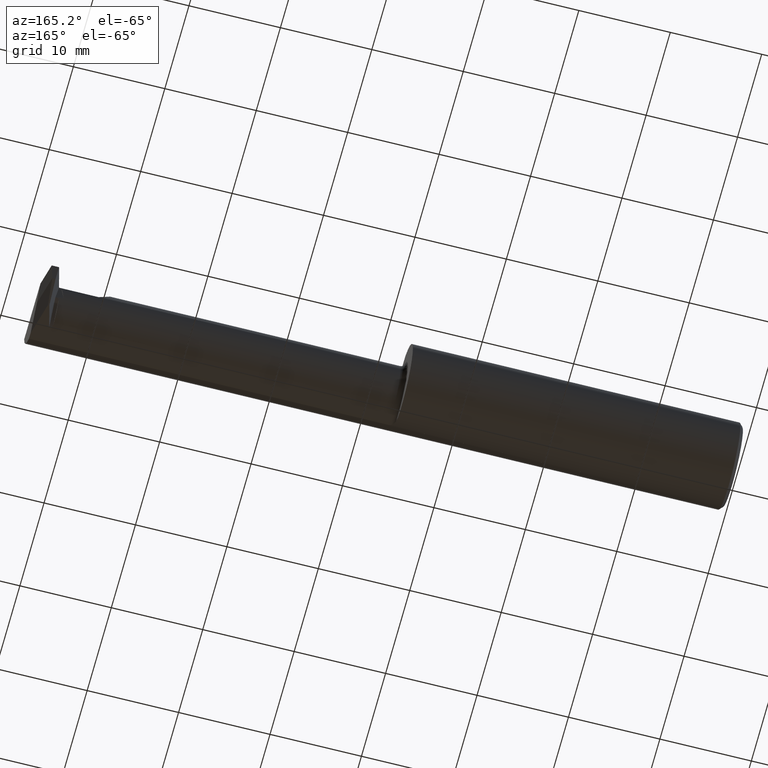
[diagram: clean part render]
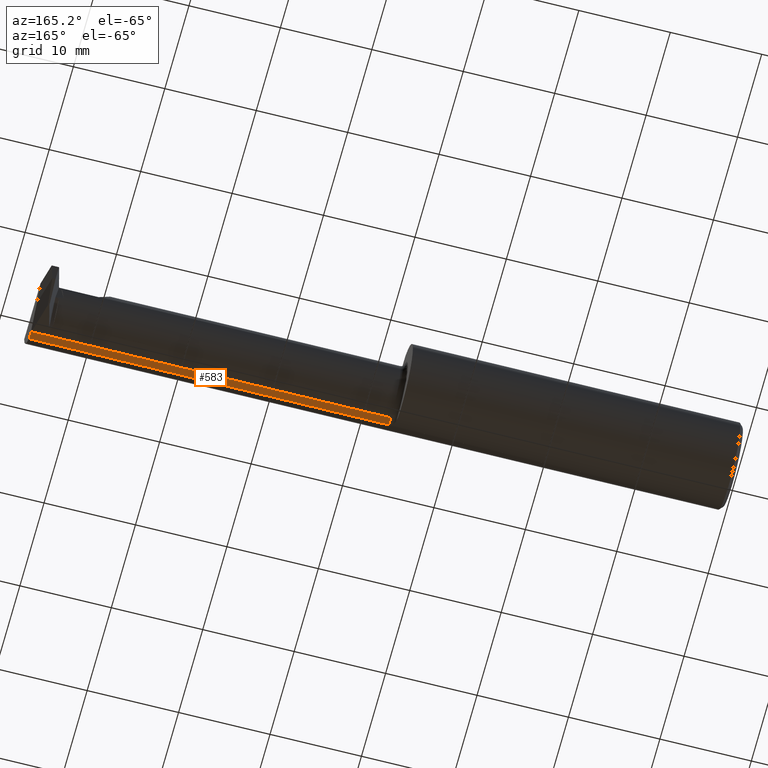
[diagram: same view with one face highlighted and labeled with its STEP entity id]
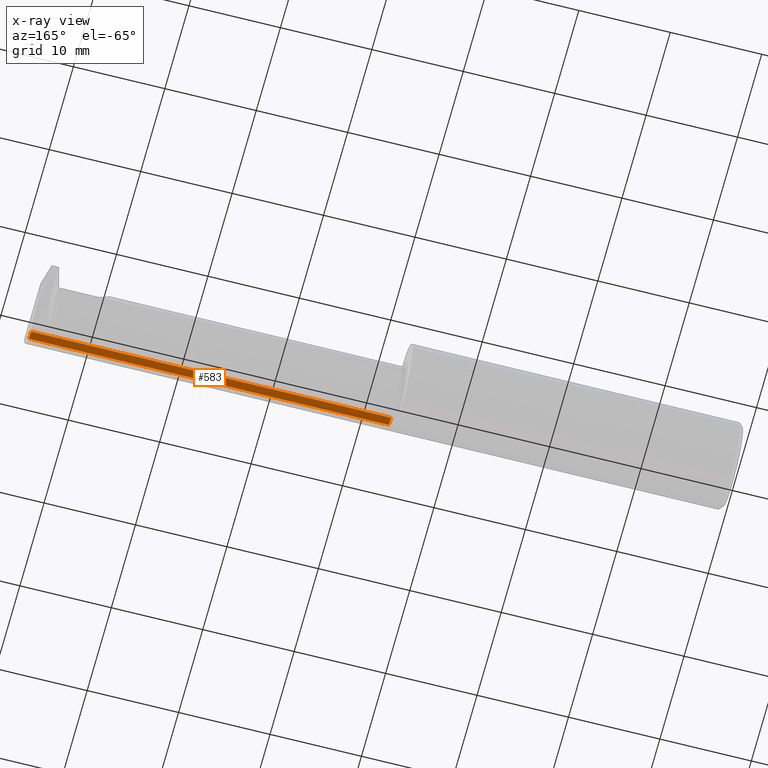
[diagram: x-ray of the same camera — body ghosted, the highlighted face saturated]
A machine part, auxiliary view. The second image highlights one B-rep face of the part: STEP entity #583.
The next image is the same camera in x-ray: the body ghosted, the highlighted face saturated — about 0% of this face is hidden behind the body in this view.
In plain terms, the highlighted cylindrical surface (partial cylindrical patch) has radius 3.937 mm, axis along (-1, -0, -0).
Its self-contained STEP definition (entity closure, byte-faithful):
#11 = CYLINDRICAL_SURFACE ( 'NONE', #20, 0.1549999999999999989 ) ;
#14 = DIRECTION ( 'NONE',  ( 0.000000000000000000, 0.000000000000000000, -1.000000000000000000 ) ) ;
#20 = AXIS2_PLACEMENT_3D ( 'NONE', #940, #626, #250 ) ;
#30 = VERTEX_POINT ( 'NONE', #695 ) ;
#56 = CARTESIAN_POINT ( 'NONE',  ( 2.998238283139452953, -0.07534999999999998643, -0.1549999999999999156 ) ) ;
#75 = CARTESIAN_POINT ( 'NONE',  ( 3.000000000000000444, -0.08199235869079647687, -0.1548576090188105714 ) ) ;
#94 =( BOUNDED_CURVE ( )  B_SPLINE_CURVE ( 3, ( #56, #511, #876, #947 ),
 .UNSPECIFIED., .F., .F. ) 
 B_SPLINE_CURVE_WITH_KNOTS ( ( 4, 4 ),
 ( 0.6981317007977293487, 0.7409987552670644906 ),
 .UNSPECIFIED. ) 
 CURVE ( )  GEOMETRIC_REPRESENTATION_ITEM ( )  RATIONAL_B_SPLINE_CURVE ( ( 1.000000000000000000, 0.9998468738323584848, 0.9998468738323584848, 1.000000000000000000 ) ) 
 REPRESENTATION_ITEM ( '' )  );
#115 = ORIENTED_EDGE ( 'NONE', *, *, #537, .T. ) ;
#123 = AXIS2_PLACEMENT_3D ( 'NONE', #791, #797, #412 ) ;
#181 = VERTEX_POINT ( 'NONE', #75 ) ;
#201 = VECTOR ( 'NONE', #832, 39.37007874015748143 ) ;
#204 = VERTEX_POINT ( 'NONE', #682 ) ;
#250 = DIRECTION ( 'NONE',  ( 0.000000000000000000, 0.000000000000000000, 1.000000000000000000 ) ) ;
#252 = VECTOR ( 'NONE', #445, 39.37007874015748143 ) ;
#271 = VERTEX_POINT ( 'NONE', #328 ) ;
#309 = LINE ( 'NONE', #457, #252 ) ;
#328 = CARTESIAN_POINT ( 'NONE',  ( 2.919999999999999485, -0.07534999999999998643, -0.1549999999999999156 ) ) ;
#345 = CARTESIAN_POINT ( 'NONE',  ( 3.000000000000000444, -0.07534999999999998643, -0.1549999999999999156 ) ) ;
#350 = EDGE_CURVE ( 'NONE', #204, #181, #376, .T. ) ;
#361 = EDGE_CURVE ( 'NONE', #660, #271, #720, .T. ) ;
#376 = CIRCLE ( 'NONE', #123, 0.1549999999999999434 ) ;
#382 = EDGE_CURVE ( 'NONE', #910, #30, #905, .T. ) ;
#396 = CARTESIAN_POINT ( 'NONE',  ( 1.450000000000000178, -0.07535000000000005582, 0.000000000000000000 ) ) ;
#412 = DIRECTION ( 'NONE',  ( 0.000000000000000000, 0.000000000000000000, 1.000000000000000000 ) ) ;
#443 = ORIENTED_EDGE ( 'NONE', *, *, #382, .T. ) ;
#445 = DIRECTION ( 'NONE',  ( -1.000000000000000000, -0.000000000000000000, -0.000000000000000000 ) ) ;
#457 = CARTESIAN_POINT ( 'NONE',  ( 2.172500000000000320, -0.1111655275381552704, -0.1508053314281814217 ) ) ;
#461 = EDGE_LOOP ( 'NONE', ( #550, #649, #650, #967, #115, #443 ) ) ;
#511 = CARTESIAN_POINT ( 'NONE',  ( 2.998811112660292544, -0.07756496740937238177, -0.1550000000000000266 ) ) ;
#527 = LINE ( 'NONE', #599, #201 ) ;
#537 = EDGE_CURVE ( 'NONE', #204, #910, #309, .T. ) ;
#550 = ORIENTED_EDGE ( 'NONE', *, *, #557, .F. ) ;
#557 = EDGE_CURVE ( 'NONE', #271, #30, #527, .T. ) ;
#561 = CARTESIAN_POINT ( 'NONE',  ( 1.450000000000000178, -0.1111655275381552704, -0.1508053314281814217 ) ) ;
#583 = ADVANCED_FACE ( 'NONE', ( #787 ), #11, .T. ) ;
#599 = CARTESIAN_POINT ( 'NONE',  ( 1.425000000000000266, -0.07535000000000004194, -0.1549999999999999989 ) ) ;
#626 = DIRECTION ( 'NONE',  ( -1.000000000000000000, -0.000000000000000000, -0.000000000000000000 ) ) ;
#649 = ORIENTED_EDGE ( 'NONE', *, *, #361, .F. ) ;
#650 = ORIENTED_EDGE ( 'NONE', *, *, #897, .T. ) ;
#660 = VERTEX_POINT ( 'NONE', #778 ) ;
#672 = AXIS2_PLACEMENT_3D ( 'NONE', #396, #696, #14 ) ;
#682 = CARTESIAN_POINT ( 'NONE',  ( 3.000000000000000444, -0.1111655275381552010, -0.1508053314281814494 ) ) ;
#695 = CARTESIAN_POINT ( 'NONE',  ( 1.450000000000000178, -0.07535000000000004194, -0.1549999999999999989 ) ) ;
#696 = DIRECTION ( 'NONE',  ( 1.000000000000000000, 0.000000000000000000, 0.000000000000000000 ) ) ;
#720 = LINE ( 'NONE', #345, #931 ) ;
#778 = CARTESIAN_POINT ( 'NONE',  ( 2.998238283139452953, -0.07534999999999998643, -0.1549999999999999156 ) ) ;
#787 = FACE_OUTER_BOUND ( 'NONE', #461, .T. ) ;
#791 = CARTESIAN_POINT ( 'NONE',  ( 3.000000000000000444, -0.07535000000000005582, 0.000000000000000000 ) ) ;
#797 = DIRECTION ( 'NONE',  ( 1.000000000000000000, -0.000000000000000000, -0.000000000000000000 ) ) ;
#832 = DIRECTION ( 'NONE',  ( -1.000000000000000000, -0.000000000000000000, -0.000000000000000000 ) ) ;
#876 = CARTESIAN_POINT ( 'NONE',  ( 2.999398441549230299, -0.07977942606453850005, -0.1549525290705620340 ) ) ;
#877 = DIRECTION ( 'NONE',  ( -1.000000000000000000, -0.000000000000000000, -0.000000000000000000 ) ) ;
#897 = EDGE_CURVE ( 'NONE', #660, #181, #94, .T. ) ;
#905 = CIRCLE ( 'NONE', #672, 0.1549999999999999989 ) ;
#910 = VERTEX_POINT ( 'NONE', #561 ) ;
#931 = VECTOR ( 'NONE', #877, 39.37007874015748143 ) ;
#940 = CARTESIAN_POINT ( 'NONE',  ( 1.425000000000000266, -0.07535000000000005582, 0.000000000000000000 ) ) ;
#947 = CARTESIAN_POINT ( 'NONE',  ( 3.000000000000000444, -0.08199235869079647687, -0.1548576090188105714 ) ) ;
#967 = ORIENTED_EDGE ( 'NONE', *, *, #350, .F. ) ;